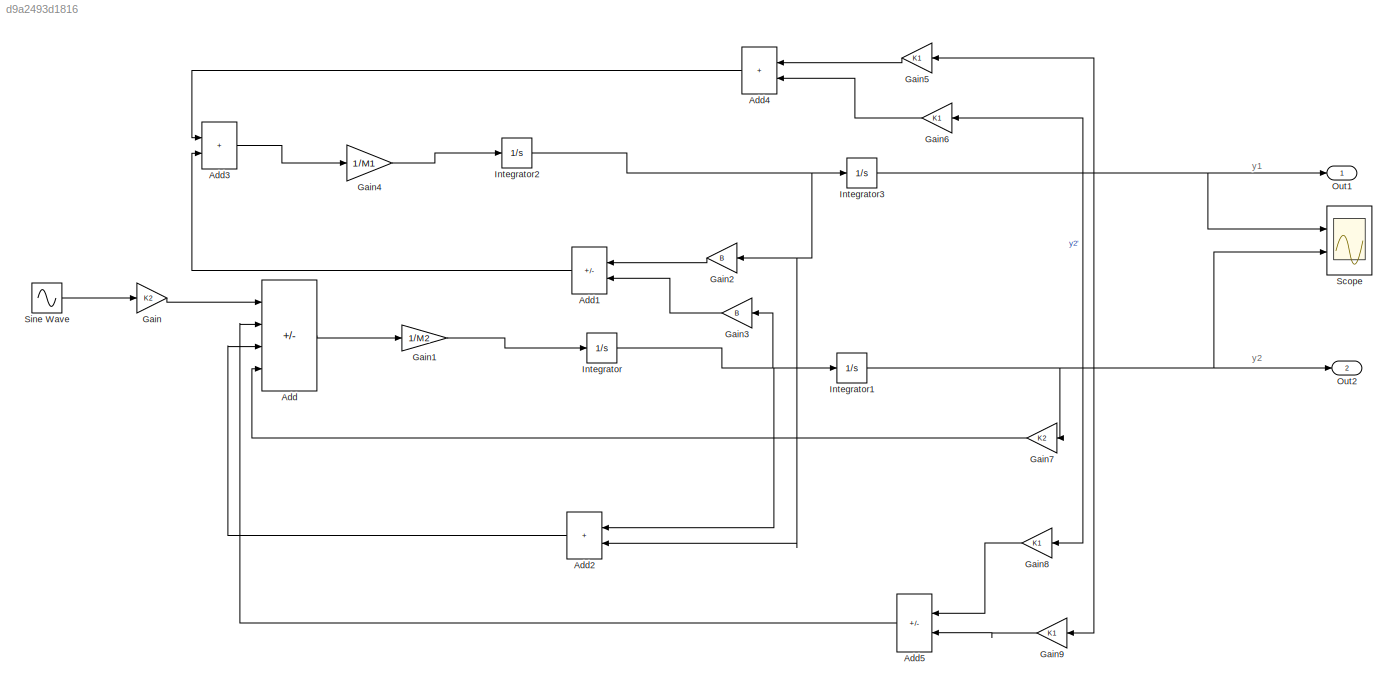
MODEL slx_d9a2493d1816
KIND model
CONFIG AbsTol = auto
CONFIG EnableMultiTasking = off
CONFIG FixedStep = auto
CONFIG MaxStep = auto
CONFIG MinStep = auto
CONFIG RelTol = 1e-3
CONFIG SampleTimeConstraint = Unconstrained
CONFIG SolverName = VariableStepAuto
CONFIG StartTime = 0.0
CONFIG StopTime = 100
WORKSPACE source: mxarray member
WORKSPACE B: Simulink.Parameter (value not decoded)
WORKSPACE K1: Simulink.Parameter (value not decoded)
WORKSPACE K2: Simulink.Parameter (value not decoded)
WORKSPACE M1: Simulink.Parameter (value not decoded)
WORKSPACE M2: Simulink.Parameter (value not decoded)
BLOCK [Sum] Add
  IconShape = rectangular
  Inputs = +++-
  Ports = [4, 1]
BLOCK [Sum] Add1
  IconShape = rectangular
  Inputs = -+
  Ports = [2, 1]
BLOCK [Sum] Add2
  IconShape = rectangular
  Ports = [2, 1]
BLOCK [Sum] Add3
  IconShape = rectangular
  Ports = [2, 1]
BLOCK [Sum] Add4
  IconShape = rectangular
  Ports = [2, 1]
BLOCK [Sum] Add5
  IconShape = rectangular
  Inputs = -+
  Ports = [2, 1]
BLOCK [Gain] Gain
  Gain = K2
BLOCK [Gain] Gain1
  Gain = 1/M2
BLOCK [Gain] Gain2
  Gain = B
BLOCK [Gain] Gain3
  Gain = B
BLOCK [Gain] Gain4
  Gain = 1/M1
BLOCK [Gain] Gain5
  Gain = K1
BLOCK [Gain] Gain6
  Gain = K1
BLOCK [Gain] Gain7
  Gain = K2
BLOCK [Gain] Gain8
  Gain = K1
BLOCK [Gain] Gain9
  Gain = K1
BLOCK [Integrator] Integrator
  Ports = [1, 1]
BLOCK [Integrator] Integrator1
  Ports = [1, 1]
BLOCK [Integrator] Integrator2
  Ports = [1, 1]
BLOCK [Integrator] Integrator3
  Ports = [1, 1]
BLOCK [Outport] Out1
BLOCK [Outport] Out2
  Port = 2
BLOCK [Scope] Scope
  Floating = off
  NumInputPorts = 2
  Ports = [2]
  ScopeSpecificationString = Simulink.scopes.TimeScopeBlockCfg('CurrentConfiguration', extmgr.ConfigurationSet(extmgr.Configuration('Core','General UI',true),extmgr.Configuration('Core','Source UI',true),extmgr.Configuration('Sources','WiredSimulink',true),extmgr.Configuration('Visuals','Time Domain',true,'SerializedDisplays',{struct('MinYLimReal','-10.89551','MaxYLimReal','98.05959','YLabelReal','','MinYLimMag','0.00000','Ma...<+2151ch>
BLOCK [Sin] Sine Wave
  Ports = [0, 1]
  SampleTime = 0
ANNOTATION (root): y1
ANNOTATION (root): y2
LINE Add1:1 -> Add3:2
LINE Add2:1 -> Add:3
LINE Add3:1 -> Gain4:1
LINE Add4:1 -> Add3:1
LINE Add5:1 -> Add:2
LINE Add:1 -> Gain1:1
LINE Gain1:1 -> Integrator:1
LINE Gain2:1 -> Add1:1
LINE Gain3:1 -> Add1:2
LINE Gain4:1 -> Integrator2:1
LINE Gain5:1 -> Add4:1
LINE Gain6:1 -> Add4:2
LINE Gain7:1 -> Add:4
LINE Gain8:1 -> Add5:1
LINE Gain9:1 -> Add5:2
LINE Gain:1 -> Add:1
NET Integrator1:1 -> Gain6:1, Gain7:1, Gain8:1, Out2:1, Scope:2
NET Integrator2:1 -> Add2:2, Gain2:1, Integrator3:1
NET Integrator3:1 -> Gain5:1, Gain9:1, Out1:1, Scope:1
NET Integrator:1 -> Add2:1, Gain3:1, Integrator1:1
LINE Sine Wave:1 -> Gain:1
note: NET lines group one-source signal fan-out (src -> all destinations, sorted); 1:1 wires keep LINE
